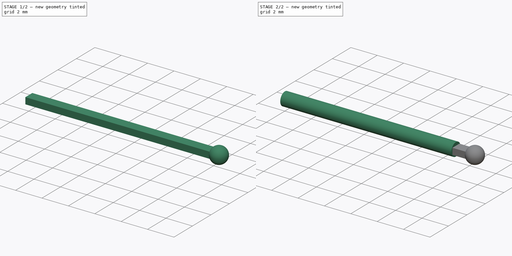
[diagram: build sequence overview — one tinted view per stage of 2, left to right]
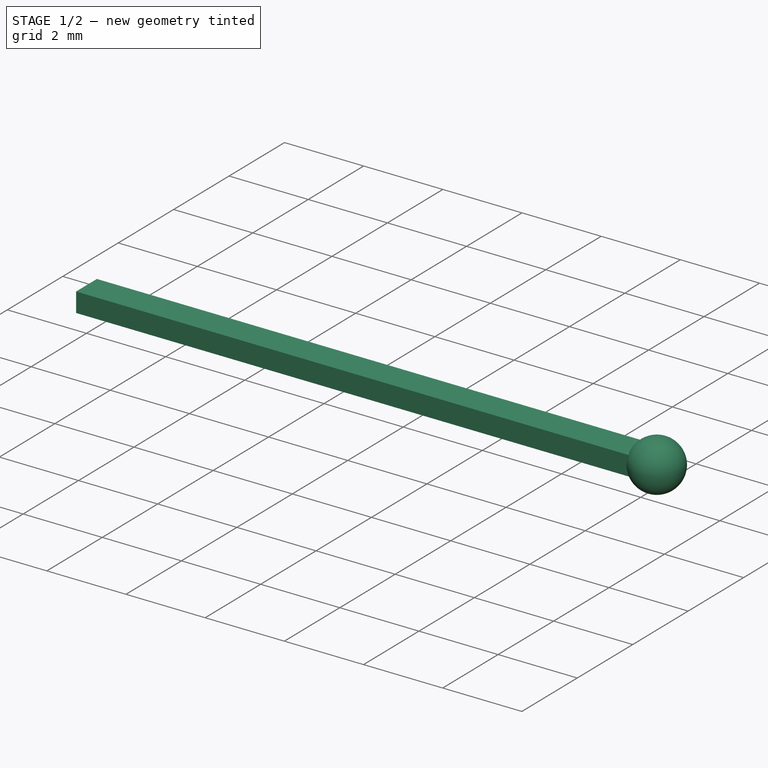
[diagram: stage 1 of 2 — iso view after this stage's code; geometry added in this stage tinted green]
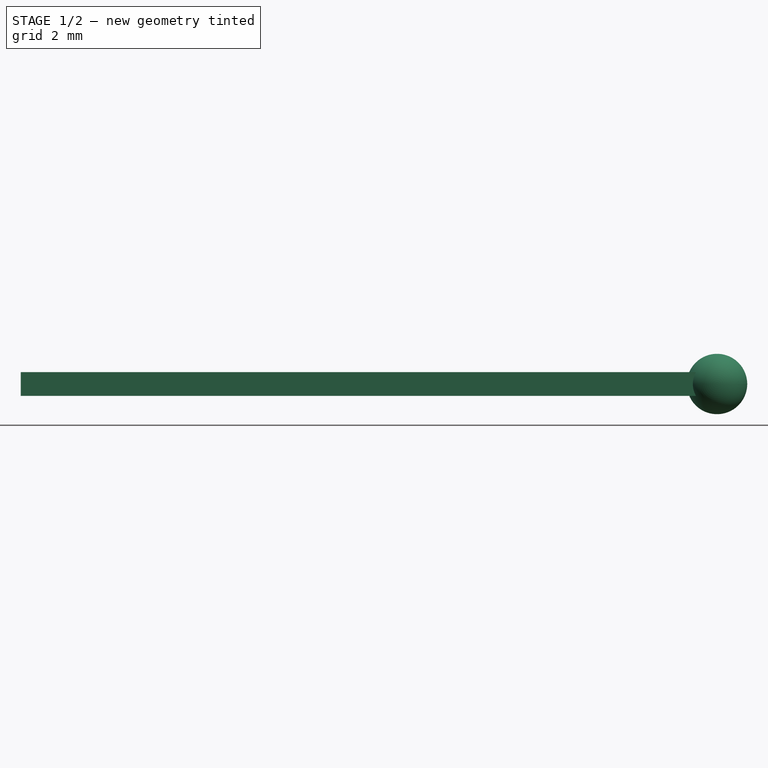
[diagram: stage 1 of 2 — front view after this stage's code; geometry added in this stage tinted green]
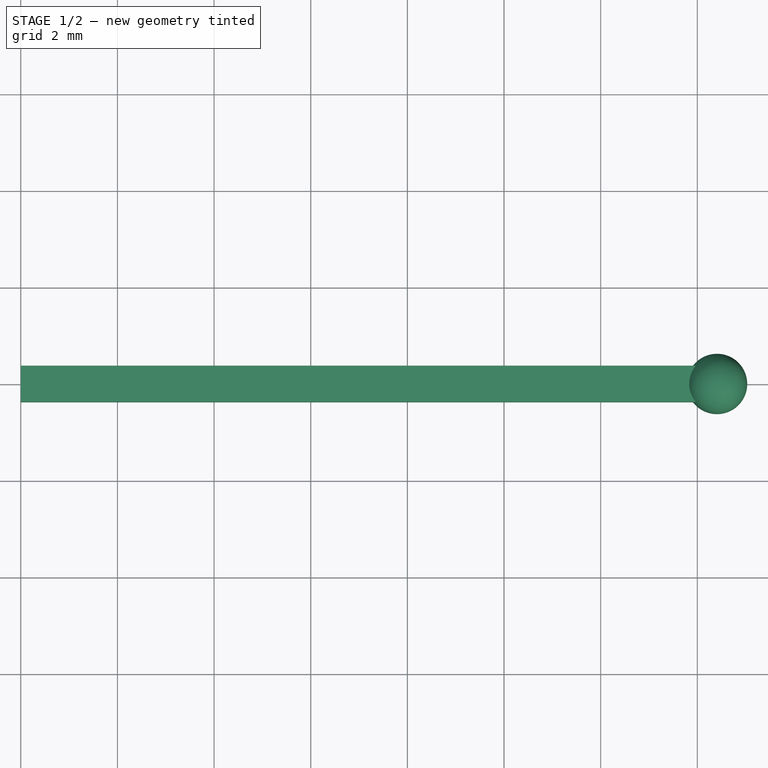
[diagram: stage 1 of 2 — top view after this stage's code; geometry added in this stage tinted green]
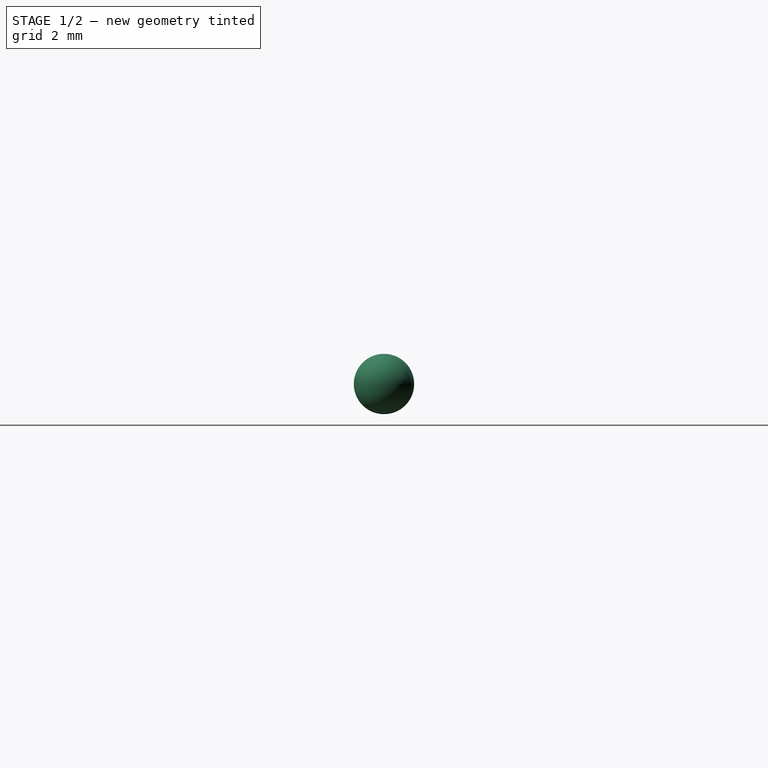
[diagram: stage 1 of 2 — right view after this stage's code; geometry added in this stage tinted green]
FCSTD DOCUMENT  (FreeCAD 0.20R29177 (Git))
Label: ax4
License: All rights reserved
LicenseURL: http://en.wikipedia.org/wiki/All_rights_reserved
objects: Sketcher::SketchObject×3, PartDesign::Pad×2, PartDesign::Line×2, Spreadsheet::Sheet×1, PartDesign::Revolution×1, PartDesign::Body×1
note: 12 computed .brp shape members not serialized (recipe doc carries the construction recipe); baked Part::Feature solids carry a one-line shape summary decoded from their .brp

FEATURE [Spreadsheet::Sheet] Spreadsheet
  cells = A2=Design Parameters; A3=RefLength; B3(RefLength)==1mm; A4=Width; B4(Width)==0.75 * RefLength; A5=Thickness; B5(Thickness)==0.5 * RefLength; A6=ThicknessMargin; B6(ThicknessMargin)==0.01 * RefLength; A7=ThicknessPad; B7(ThicknessPad)==Thickness - ThicknessMargin; A8=TotalLength_3And4; B8(TotalLength_3And4)==19.21 * RefLength + Width; A9=BallToBallCenter; B9(BallToBallCenter)==TotalLength_3And4 - Width; A10=BeamLength; B10(BeamLength)==0.75 * (TotalLength_3And4 - Width); A11=BallDiameter; B11(BallDiameter)==1.25 * RefLength; A12=MarkPositionX; B12(MarkPositionX)==0.05 * BeamLength; A13=MarkDiameter; B13(MarkDiameter)==0.5 * Width; A14=MarkDepth; B14(MarkDepth)==0.05 * RefLength; A16=CylinderDiameter; B16(CylinderDiameter)==1.1 * sqrt(pow(Width; 2) + pow(Thickness; 2)); A17=CylinderLength; B17(CylinderLength)==0.9 * BeamLength; A19=EndOffset; B19==BeamLength - 0.5 * BallToBallCenter
FEATURE [Sketcher::SketchObject] Sketch  label="BeamSketch"
  FullyConstrained = true
  MapMode = 5
  Support = -> [XY_Plane]
  expr: Constraints[17] = Spreadsheet.Width
  expr: Constraints[18] = Spreadsheet.BeamLength
  sketch-geometry (8):
    g0: LineSegment StartX=0 StartY=0.375 StartZ=0 EndX=14.4075 EndY=0.375 EndZ=0
    g1: LineSegment StartX=14.4075 StartY=-0.375 StartZ=0 EndX=0 EndY=-0.375 EndZ=0
    g2: LineSegment StartX=14.4075 StartY=0.375 StartZ=0 EndX=14.4075 EndY=0 EndZ=0
    g3: LineSegment StartX=14.4075 StartY=0 StartZ=0 EndX=14.4075 EndY=-0.375 EndZ=0
    g4: ArcOfCircle CenterX=14.4075 CenterY=0 CenterZ=0 NormalX=0 NormalY=0 NormalZ=1 AngleXU=0 Radius=0.375 StartAngle=4.71239 EndAngle=7.85398
    g5: LineSegment StartX=0 StartY=0.375 StartZ=0 EndX=0 EndY=0 EndZ=0
    g6: LineSegment StartX=0 StartY=0 StartZ=0 EndX=0 EndY=-0.375 EndZ=0
    g7: GeomPoint X=14.7825 Y=0 Z=0
  constraints (21):
    c: Horizontal(g0)
    c: Horizontal(g1)
    c: Coincident(g2,g3)
    c: Coincident(g2,g0)
    c: Coincident(g3,g1)
    c: Coincident(g4,g1)
    c: Coincident(g4,g0)
    c: Coincident(g4,g2)
    c: Vertical(g3)
    c: Vertical(g2)
    c: Coincident(g5,g6)
    c: Vertical(g6)
    c: Vertical(g5)
    c: Coincident(g5,g0)
    c: Coincident(g6,g1)
    c: PointOnObject(g7,g-1)
    c: PointOnObject(g7,g4)
    c: DistanceY(g1,g0) = 0.75
    c: DistanceX(g0,g0) = 14.4075
    c: Coincident(g-1,g5)
    c: Equal(g5,g6)
FEATURE [PartDesign::Pad] Pad  label="BeamPad"
  Direction = (0,0,1)
  Length = 0.49
  Length2 = 10
  Midplane = true
  Profile = -> Sketch
  ReferenceAxis = -> Sketch [N_Axis]
  Type = 0
  expr: Length = Spreadsheet.ThicknessPad
FEATURE [PartDesign::Line] DatumLine  label="LeftBallDatumLine"
  AttacherType = Attacher::AttachEngineLine
  Length = 20
  MapMode = 29
  Placement = pos=(-1.3e-15,0,0) rot=(1,0,0;1.5708rad)
  ResizeMode = 0
FEATURE [Sketcher::SketchObject] Sketch002  label="RightBallSketch"
  FullyConstrained = true
  MapMode = 5
  Support = -> [XY_Plane]
  expr: Constraints[10] = Spreadsheet.BallDiameter
  expr: Constraints[2] = Spreadsheet.BeamLength
  sketch-geometry (4):
    g0: LineSegment StartX=0 StartY=0 StartZ=0 EndX=14.4075 EndY=0 EndZ=0
    g1: ArcOfCircle CenterX=14.4075 CenterY=0 CenterZ=0 NormalX=0 NormalY=0 NormalZ=1 AngleXU=0 Radius=0.625 StartAngle=4.71239 EndAngle=7.85398
    g2: LineSegment StartX=14.4075 StartY=0.625 StartZ=0 EndX=14.4075 EndY=0 EndZ=0
    g3: LineSegment StartX=14.4075 StartY=0 StartZ=0 EndX=14.4075 EndY=-0.625 EndZ=0
  constraints (11):
    c: Horizontal(g0)
    c: Coincident(g-1,g0)
    c: DistanceX(g0,g0) = 14.4075
    c: Coincident(g0,g1)
    c: Vertical(g2)
    c: Vertical(g3)
    c: Coincident(g1,g3)
    c: Coincident(g1,g2)
    c: Coincident(g2,g1)
    c: Coincident(g3,g1)
    c: DistanceY(g1,g1) = 1.25
FEATURE [PartDesign::Line] DatumLine001  label="RightBallDatumLine"
  AttacherType = Attacher::AttachEngineLine
  Length = 20
  MapMode = 29
  Placement = pos=(14.4075,0,0) rot=(1,0,0;1.5708rad)
  ResizeMode = 0
  Support = -> [Sketch002]
FEATURE [PartDesign::Revolution] Revolution001  label="RightBallRevolution"
  Angle = 360
  Axis = (0,-1,2e-16)
  Base = (14.4075,0,0)
  BaseFeature = -> Pad
  Profile = -> Sketch002
  ReferenceAxis = -> DatumLine001
  Reversed = true
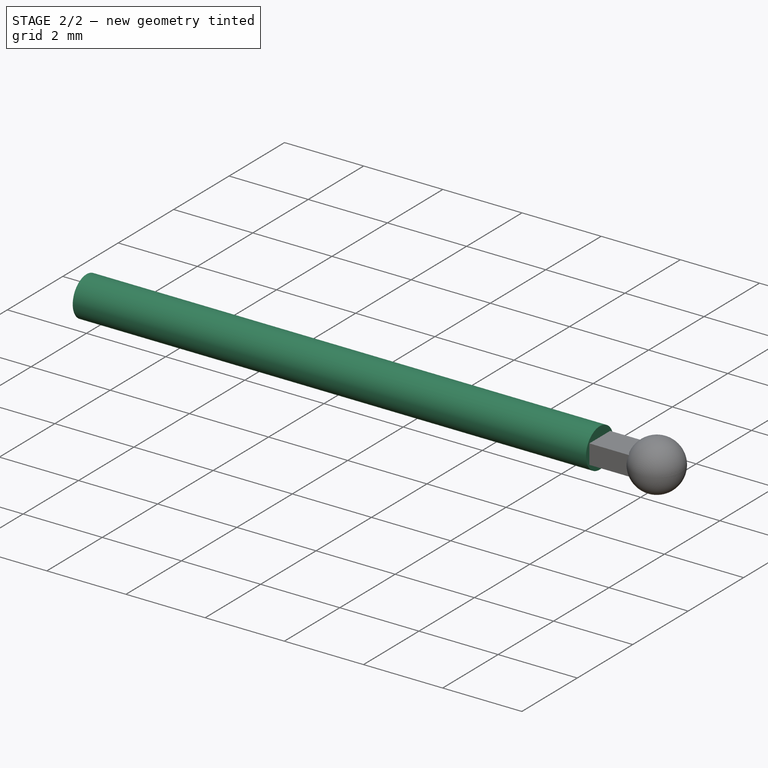
[diagram: stage 2 of 2 — iso view after this stage's code; geometry added in this stage tinted green]
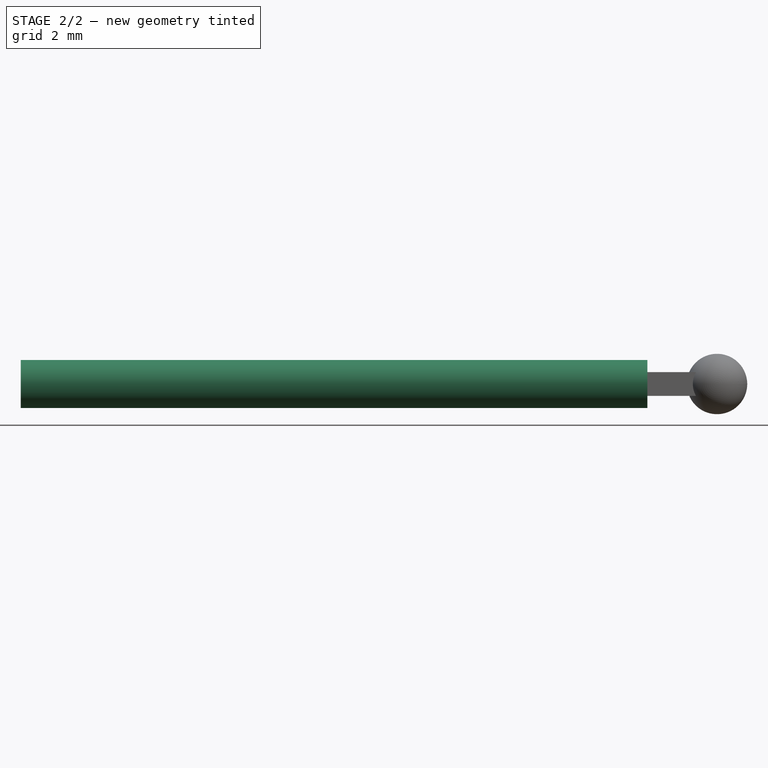
[diagram: stage 2 of 2 — front view after this stage's code; geometry added in this stage tinted green]
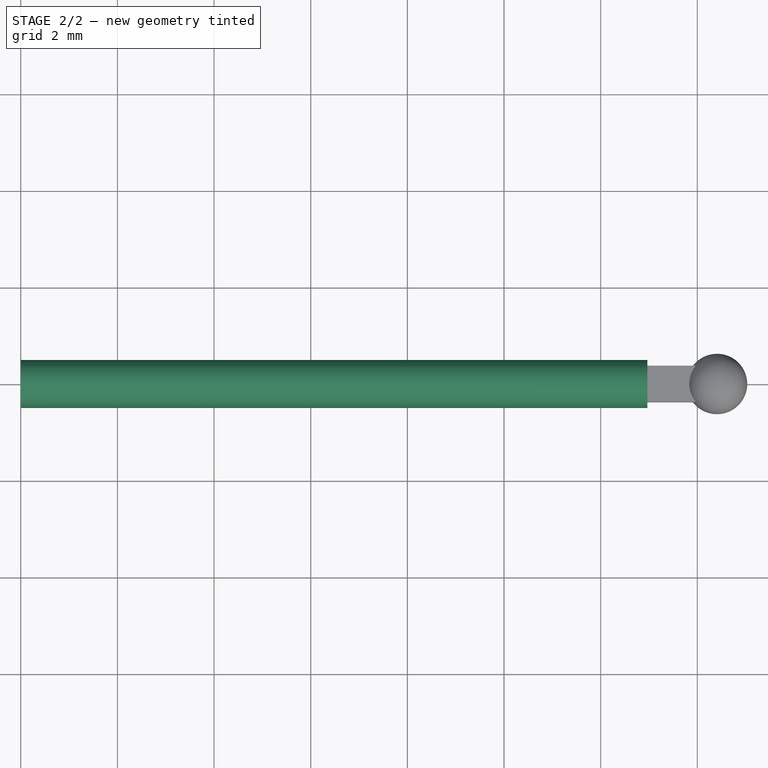
[diagram: stage 2 of 2 — top view after this stage's code; geometry added in this stage tinted green]
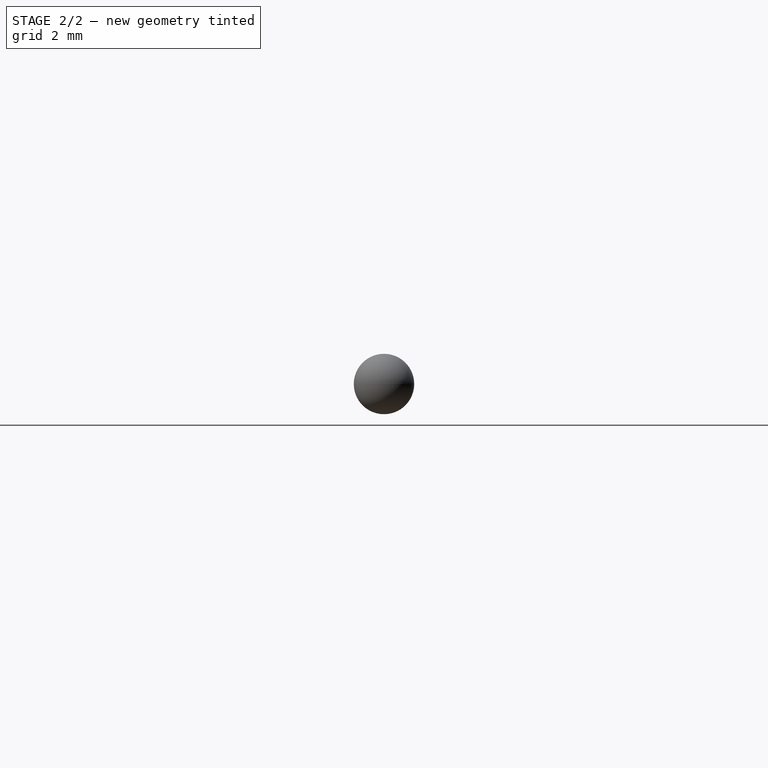
[diagram: stage 2 of 2 — right view after this stage's code; geometry added in this stage tinted green]
FEATURE [Sketcher::SketchObject] Sketch003  label="CylinderSketch"
  FullyConstrained = true
  MapMode = 5
  Placement = pos=(0,0,0) rot=(0.57735,0.57735,0.57735;2.0944rad)
  Support = -> [YZ_Plane]
  expr: Constraints[1] = Spreadsheet.CylinderDiameter
  sketch-geometry (1):
    g0: Circle CenterX=0 CenterY=0 CenterZ=0 NormalX=0 NormalY=0 NormalZ=1 AngleXU=0 Radius=0.495763
  constraints (2):
    c: Coincident(g-1,g0)
    c: Diameter(g0) = 0.991527
FEATURE [PartDesign::Pad] Pad001
  BaseFeature = -> Revolution001
  Direction = (1,-2e-16,3e-16)
  Length = 12.9668
  Length2 = 10
  Profile = -> Sketch003
  ReferenceAxis = -> Sketch003 [N_Axis]
  Type = 0
  expr: Length = Spreadsheet.CylinderLength
FEATURE [PartDesign::Body] Body
  Group = -> [Sketch,Pad,DatumLine,Sketch002,DatumLine001,Revolution001,Sketch003,Pad001]
  Origin = -> Origin
  Tip = -> Pad001
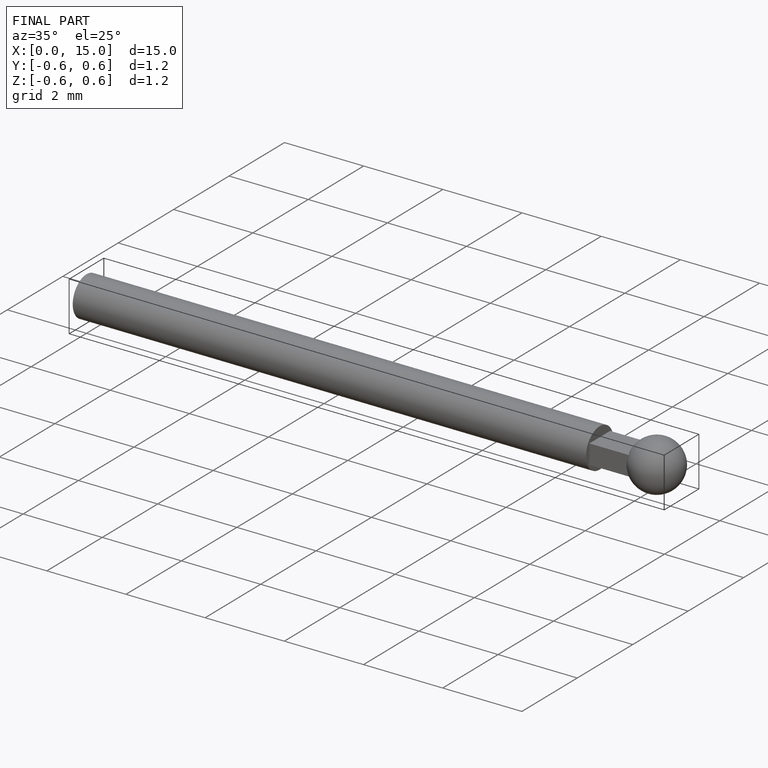
[diagram: finished part — iso view with bounding-box wireframe]
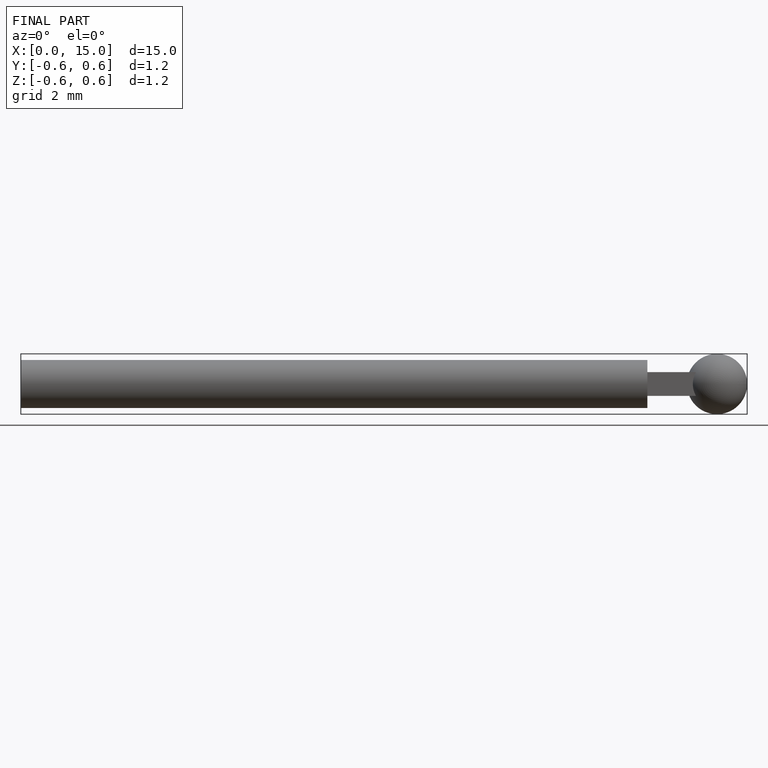
[diagram: finished part — front view with bounding-box wireframe]
